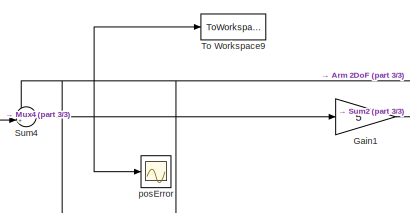
[diagram: root canvas - part 1/3, top center region]
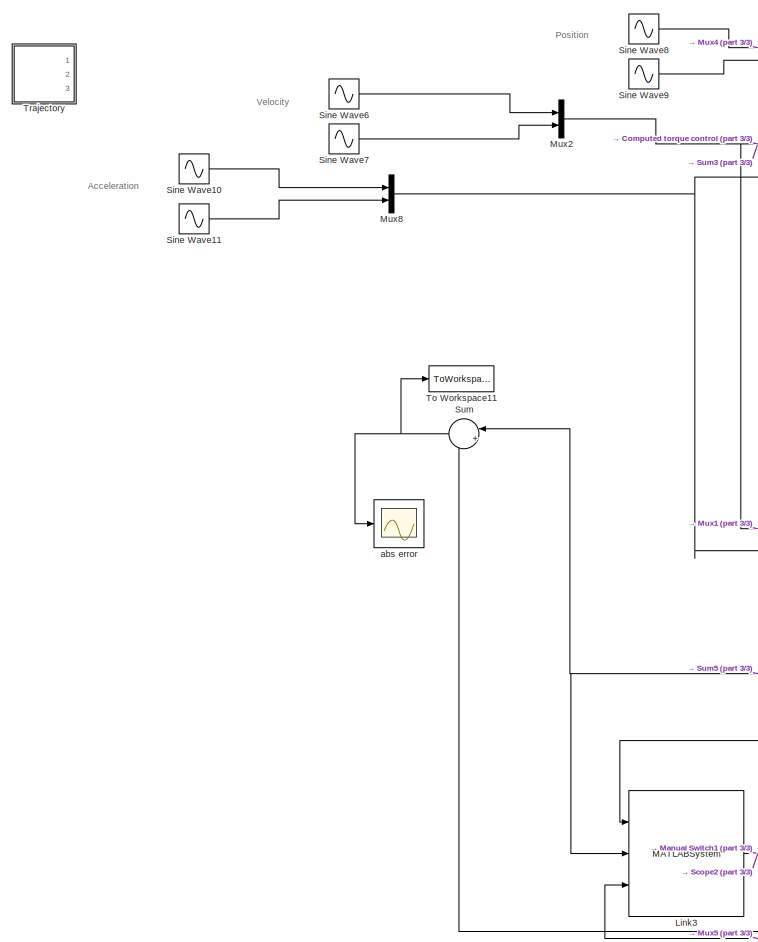
[diagram: root canvas - part 2/3, middle left region]
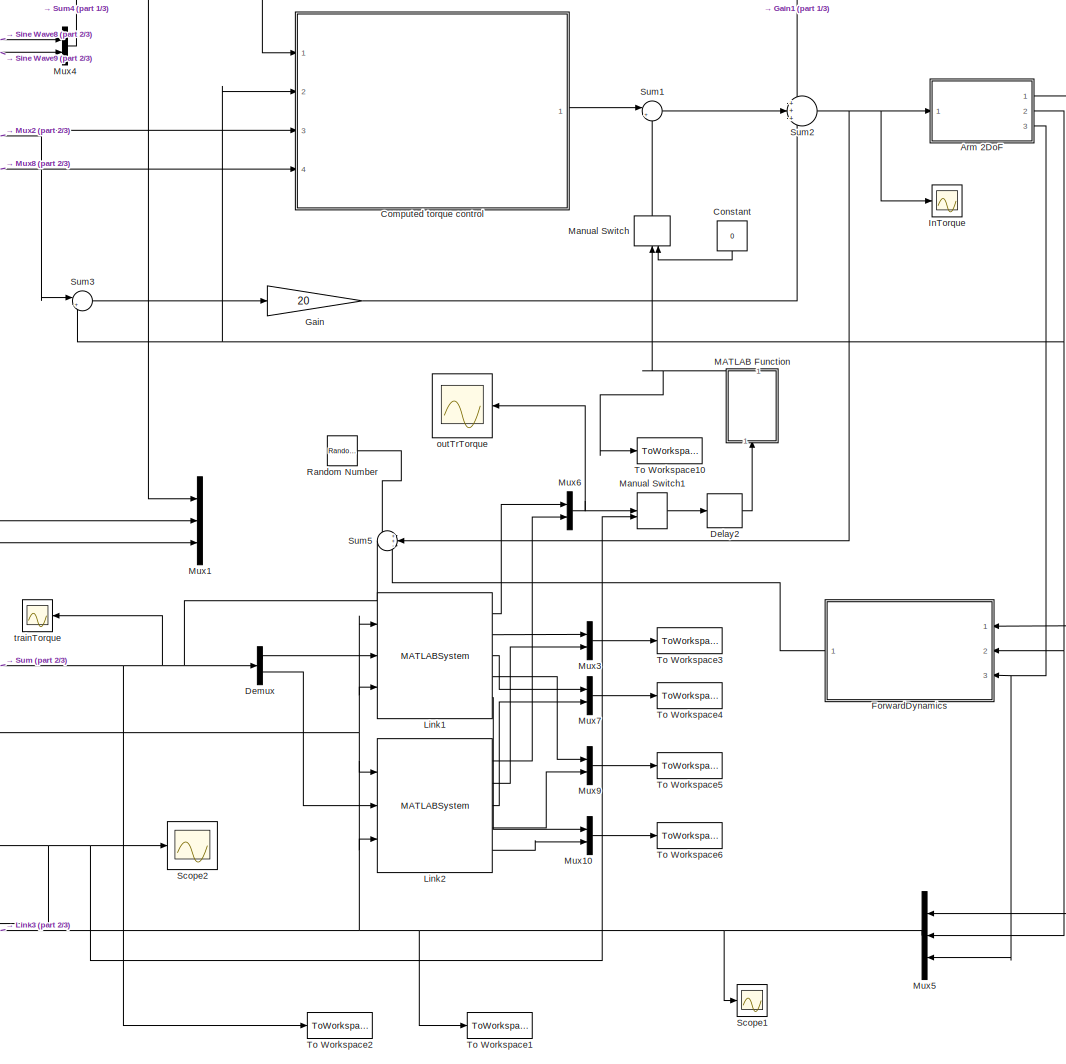
[diagram: root canvas - part 3/3, right side, full height]
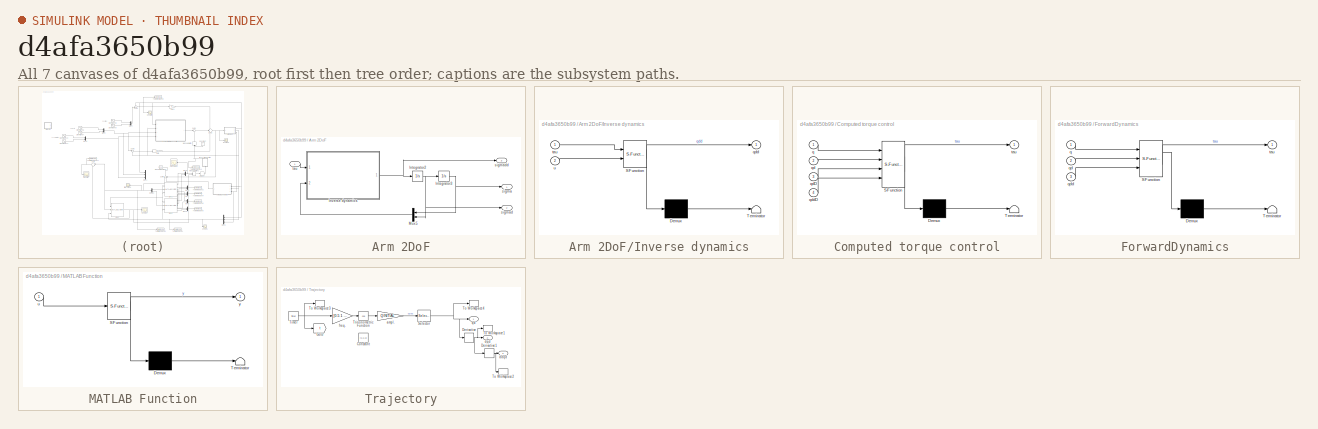
[diagram: thumbnail index - all 7 canvases of the model, root first then tree order]
MODEL slx_d4afa3650b99
KIND model
CONFIG AbsTol = auto
CONFIG EnableMultiTasking = off
CONFIG FixedStep = 1e-2
CONFIG MaxStep = auto
CONFIG MinStep = auto
CONFIG RelTol = 1e-3
CONFIG SampleTimeConstraint = Unconstrained
CONFIG Solver = FixedStepAuto
CONFIG SolverName = FixedStepAuto
CONFIG StartTime = 0
CONFIG StopTime = 60
WORKSPACE source: external: MAT-File  (data not in archive)
BLOCK [SubSystem] Arm 2DoF
  Ports = [1, 3]
  RequestExecContextInheritance = off
BLOCK [Integrator] Arm 2DoF/Integrator2
  InitialCondition = [0;0]
  Ports = [1, 1]
BLOCK [Integrator] Arm 2DoF/Integrator3
  InitialCondition = [0;0]
  Ports = [1, 1]
BLOCK [SubSystem] Arm 2DoF/Inverse dynamics
  ErrorFcn = Stateflow.Translate.translate
  PermitHierarchicalResolution = ExplicitOnly
  Ports = [2, 1]
  RequestExecContextInheritance = off
  SFBlockType = MATLAB Function
  TreatAsAtomicUnit = on
BLOCK [Demux] Arm 2DoF/Inverse dynamics/ Demux 
  Outputs = 1
  Ports = [1, 1]
BLOCK [S-Function] Arm 2DoF/Inverse dynamics/ SFunction 
  EnableBusSupport = on
  FunctionName = sf_sfun
  PortCounts = [2 2]
  Ports = [2, 2]
  SFcnIsStateOwnerBlock = off
  SFunctionDeploymentMode = off
  Tag = Stateflow S-Function simTest 8
BLOCK [Terminator] Arm 2DoF/Inverse dynamics/ Terminator 
BLOCK [Outport] Arm 2DoF/Inverse dynamics/qdd
  IconDisplay = Port number
BLOCK [Inport] Arm 2DoF/Inverse dynamics/tau
  IconDisplay = Port number
BLOCK [Inport] Arm 2DoF/Inverse dynamics/u
  IconDisplay = Port number
  Port = 2
BLOCK [Mux] Arm 2DoF/Mux5
  DisplayOption = bar
  Inputs = 2
  Ports = [2, 1]
BLOCK [Outport] Arm 2DoF/sigma
  IconDisplay = Port number
BLOCK [Outport] Arm 2DoF/sigmad
  IconDisplay = Port number
  Port = 2
BLOCK [Outport] Arm 2DoF/sigmadd
  IconDisplay = Port number
  Port = 3
BLOCK [Inport] Arm 2DoF/tau
  IconDisplay = Port number
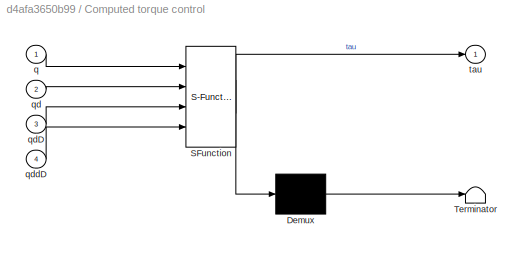
BLOCK [SubSystem] Computed torque control
  ErrorFcn = Stateflow.Translate.translate
  PermitHierarchicalResolution = ExplicitOnly
  Ports = [4, 1]
  RequestExecContextInheritance = off
  SFBlockType = MATLAB Function
  TreatAsAtomicUnit = on
BLOCK [Demux] Computed torque control/ Demux 
  Outputs = 1
  Ports = [1, 1]
BLOCK [S-Function] Computed torque control/ SFunction 
  EnableBusSupport = on
  FunctionName = sf_sfun
  PortCounts = [4 2]
  Ports = [4, 2]
  SFcnIsStateOwnerBlock = off
  SFunctionDeploymentMode = off
  Tag = Stateflow S-Function simTest 2
BLOCK [Terminator] Computed torque control/ Terminator 
BLOCK [Inport] Computed torque control/q
  IconDisplay = Port number
BLOCK [Inport] Computed torque control/qd
  IconDisplay = Port number
  Port = 2
BLOCK [Inport] Computed torque control/qdD
  IconDisplay = Port number
  Port = 3
BLOCK [Inport] Computed torque control/qddD
  IconDisplay = Port number
  Port = 4
BLOCK [Outport] Computed torque control/tau
  IconDisplay = Port number
BLOCK [Constant] Constant
  Value = 0
BLOCK [Delay] Delay2
  DelayLength = 1
  InputPortMap = u0
  Ports = [1, 1]
BLOCK [Demux] Demux
  DisplayOption = bar
  Outputs = 2
  Ports = [1, 2]
BLOCK [SubSystem] ForwardDynamics
  ErrorFcn = Stateflow.Translate.translate
  PermitHierarchicalResolution = ExplicitOnly
  Ports = [3, 1]
  RequestExecContextInheritance = off
  SFBlockType = MATLAB Function
  TreatAsAtomicUnit = on
BLOCK [Demux] ForwardDynamics/ Demux 
  Outputs = 1
  Ports = [1, 1]
BLOCK [S-Function] ForwardDynamics/ SFunction 
  EnableBusSupport = on
  FunctionName = sf_sfun
  PortCounts = [3 2]
  Ports = [3, 2]
  SFcnIsStateOwnerBlock = off
  SFunctionDeploymentMode = off
  Tag = Stateflow S-Function simTest 1
BLOCK [Terminator] ForwardDynamics/ Terminator 
BLOCK [Inport] ForwardDynamics/q
  IconDisplay = Port number
BLOCK [Inport] ForwardDynamics/qd
  IconDisplay = Port number
  Port = 2
BLOCK [Inport] ForwardDynamics/qdd
  IconDisplay = Port number
  Port = 3
BLOCK [Outport] ForwardDynamics/tau
  IconDisplay = Port number
BLOCK [Gain] Gain
  Gain = 20
  OutDataTypeStr = Inherit: Inherit via internal rule
  ParamDataTypeStr = Inherit: Inherit via internal rule
  SaturateOnIntegerOverflow = off
BLOCK [Gain] Gain1
  Gain = 5
  OutDataTypeStr = Inherit: Inherit via internal rule
  ParamDataTypeStr = Inherit: Inherit via internal rule
  SaturateOnIntegerOverflow = off
BLOCK [Scope] InTorque
  Commented = on
  Floating = off
  NumInputPorts = 1
  Ports = [1]
  ScopeSpecificationString = Simulink.scopes.TimeScopeBlockCfg('CurrentConfiguration', extmgr.ConfigurationSet(extmgr.Configuration('Core','General UI',true),extmgr.Configuration('Core','Source UI',true),extmgr.Configuration('Sources','WiredSimulink',true,'DataLoggingVariableName','ScopeData1'),extmgr.Configuration('Visuals','Time Domain',true,'SerializedDisplays',{struct('MinYLimReal','-69.19096','MaxYLimReal','205.4846','YL...<+1428ch>
BLOCK [MATLABSystem] Link1
  Commented = on
  MaskDisplay = disp('DLGP1');\nport_label('input',1,'xTrain');\nport_label('input',2,'yTrain');\nport_label('input',3,'xTest');\nport_label('output',1,'yTest');\nport_label('output',2,'mN');\nport_label('output',3,'tU');\nport_label('output',4,'tP');\nport_label('output',5,'pts');
  MaskType = DLGP_IEopMean
  N = 10000
  Ports = [3, 5]
  System = DLGP_IEopMean
  ard = off
  divMethod = 3
  meanFunction = @(x) 0
  pts = 50
  timeRate = 0.005
  wo = 300
  xSize = 6
BLOCK [MATLABSystem] Link2
  Commented = on
  MaskDisplay = disp('DLGP1');\nport_label('input',1,'xTrain');\nport_label('input',2,'yTrain');\nport_label('input',3,'xTest');\nport_label('output',1,'yTest');\nport_label('output',2,'mN');\nport_label('output',3,'tU');\nport_label('output',4,'tP');\nport_label('output',5,'pts');
  MaskType = DLGP_IEopMean
  N = 10000
  Ports = [3, 5]
  System = DLGP_IEopMean
  ard = off
  divMethod = 3
  meanFunction = @(x) x( 1, : ) + x( 2, : ) + x( 3, : ) + x( 4, : ) + x( 5, : ) + x( 6, : )
  pts = 50
  timeRate = 0.005
  wo = 300
  xSize = 6
BLOCK [MATLABSystem] Link3
  MaskDisplay = disp('DLGP1');\nport_label('input',1,'xTrain');\nport_label('input',2,'yTrain');\nport_label('input',3,'xTest');\nport_label('output',1,'yTest');
  MaskType = DLGP_IE_Mop
  N = 10000
  Ports = [3, 1]
  System = DLGP_IE_Mop
  ard = off
  divMethod = 3
  outs = 2
  pts = 50
  timeRate = 0.005
  wo = 100
  xSize = 6
BLOCK [SubSystem] MATLAB Function
  ErrorFcn = Stateflow.Translate.translate
  PermitHierarchicalResolution = ExplicitOnly
  Ports = [1, 1]
  RequestExecContextInheritance = off
  SFBlockType = MATLAB Function
  TreatAsAtomicUnit = on
BLOCK [Demux] MATLAB Function/ Demux 
  Outputs = 1
  Ports = [1, 1]
BLOCK [S-Function] MATLAB Function/ SFunction 
  EnableBusSupport = on
  FunctionName = sf_sfun
  PortCounts = [1 2]
  Ports = [1, 2]
  SFcnIsStateOwnerBlock = off
  SFunctionDeploymentMode = off
  Tag = Stateflow S-Function simTest 3
BLOCK [Terminator] MATLAB Function/ Terminator 
BLOCK [Inport] MATLAB Function/u
  IconDisplay = Port number
BLOCK [Outport] MATLAB Function/y
  IconDisplay = Port number
BLOCK [ManualSwitch] Manual Switch
BLOCK [ManualSwitch] Manual Switch1
  CurrentSetting = 0
BLOCK [Mux] Mux1
  DisplayOption = bar
  Inputs = 3
  Ports = [3, 1]
BLOCK [Mux] Mux10
  DisplayOption = bar
  Inputs = 2
  Ports = [2, 1]
BLOCK [Mux] Mux2
  DisplayOption = bar
  Inputs = 2
  Ports = [2, 1]
BLOCK [Mux] Mux3
  DisplayOption = bar
  Inputs = 2
  Ports = [2, 1]
BLOCK [Mux] Mux4
  DisplayOption = bar
  Inputs = 2
  Ports = [2, 1]
BLOCK [Mux] Mux5
  DisplayOption = bar
  Inputs = 3
  Ports = [3, 1]
BLOCK [Mux] Mux6
  DisplayOption = bar
  Inputs = 2
  Ports = [2, 1]
BLOCK [Mux] Mux7
  DisplayOption = bar
  Inputs = 2
  Ports = [2, 1]
BLOCK [Mux] Mux8
  DisplayOption = bar
  Inputs = 2
  Ports = [2, 1]
BLOCK [Mux] Mux9
  DisplayOption = bar
  Inputs = 2
  Ports = [2, 1]
BLOCK [RandomNumber] Random Number
  SampleTime = 0.005
BLOCK [Scope] Scope1
  Floating = off
  NumInputPorts = 1
  Ports = [1]
  ScopeSpecificationString = Simulink.scopes.TimeScopeBlockCfg('CurrentConfiguration', extmgr.ConfigurationSet(extmgr.Configuration('Core','General UI',true),extmgr.Configuration('Core','Source UI',true),extmgr.Configuration('Sources','WiredSimulink',true,'DataLoggingVariableName','ScopeData1'),extmgr.Configuration('Visuals','Time Domain',true,'SerializedDisplays',{struct('MinYLimReal','-14.63306','MaxYLimReal','15.62903','YL...<+1529ch>
BLOCK [Scope] Scope2
  Floating = off
  NumInputPorts = 1
  Ports = [1]
  ScopeSpecificationString = Simulink.scopes.TimeScopeBlockCfg('CurrentConfiguration', extmgr.ConfigurationSet(extmgr.Configuration('Core','General UI',true),extmgr.Configuration('Core','Source UI',true),extmgr.Configuration('Sources','WiredSimulink',true,'DataLoggingVariableName','ScopeData1'),extmgr.Configuration('Visuals','Time Domain',true,'SerializedDisplays',{struct('MinYLimReal','-3.34157','MaxYLimReal','49.27926','YLa...<+1503ch>
BLOCK [Sin] Sine Wave10
  Amplitude = -pi/6
  Phase = pi/2
  Ports = [0, 1]
  SampleTime = 0
BLOCK [Sin] Sine Wave11
  Amplitude = -pi/24
  Frequency = 0.5
  Phase = pi/2
  Ports = [0, 1]
  SampleTime = 0
BLOCK [Sin] Sine Wave6
  Amplitude = -pi/6
  Ports = [0, 1]
  SampleTime = 0
BLOCK [Sin] Sine Wave7
  Amplitude = -pi/12
  Frequency = 0.5
  Ports = [0, 1]
  SampleTime = 0
BLOCK [Sin] Sine Wave8
  Amplitude = pi/6
  Phase = pi/2
  Ports = [0, 1]
  SampleTime = 0
BLOCK [Sin] Sine Wave9
  Amplitude = pi/6
  Frequency = 0.5
  Phase = pi/2
  Ports = [0, 1]
  SampleTime = 0
BLOCK [Sum] Sum
  IconShape = round
  InputSameDT = off
  Inputs = |+-
  OutDataTypeStr = Inherit: Inherit via internal rule
  Ports = [2, 1]
  SaturateOnIntegerOverflow = off
BLOCK [Sum] Sum1
  IconShape = round
  InputSameDT = off
  Inputs = |++
  OutDataTypeStr = Inherit: Inherit via internal rule
  Ports = [2, 1]
  SaturateOnIntegerOverflow = off
BLOCK [Sum] Sum2
  IconShape = round
  InputSameDT = off
  Inputs = +++
  OutDataTypeStr = Inherit: Inherit via internal rule
  Ports = [3, 1]
  SaturateOnIntegerOverflow = off
BLOCK [Sum] Sum3
  IconShape = round
  InputSameDT = off
  Inputs = |+-
  OutDataTypeStr = Inherit: Inherit via internal rule
  Ports = [2, 1]
  SaturateOnIntegerOverflow = off
BLOCK [Sum] Sum4
  IconShape = round
  InputSameDT = off
  Inputs = -+|
  OutDataTypeStr = Inherit: Inherit via internal rule
  Ports = [2, 1]
  SaturateOnIntegerOverflow = off
BLOCK [Sum] Sum5
  IconShape = round
  InputSameDT = off
  Inputs = ++-
  OutDataTypeStr = Inherit: Inherit via internal rule
  Ports = [3, 1]
  SaturateOnIntegerOverflow = off
BLOCK [ToWorkspace] To Workspace1
  FixptAsFi = on
  MaxDataPoints = inf
  Ports = [1]
  SampleTime = -1
  Save2DSignal = 2-D array (concatenate along first dimension)
  VariableName = xTrain
BLOCK [ToWorkspace] To Workspace10
  FixptAsFi = on
  MaxDataPoints = inf
  Ports = [1]
  SampleTime = -1
  Save2DSignal = 2-D array (concatenate along first dimension)
  VariableName = Y_test
BLOCK [ToWorkspace] To Workspace11
  FixptAsFi = on
  MaxDataPoints = inf
  Ports = [1]
  SampleTime = -1
  Save2DSignal = 2-D array (concatenate along first dimension)
  VariableName = absoluteError
BLOCK [ToWorkspace] To Workspace2
  FixptAsFi = on
  MaxDataPoints = inf
  Ports = [1]
  SampleTime = -1
  Save2DSignal = 2-D array (concatenate along first dimension)
  VariableName = yTrain
BLOCK [ToWorkspace] To Workspace3
  FixptAsFi = on
  MaxDataPoints = inf
  Ports = [1]
  SampleTime = -1
  Save2DSignal = 2-D array (concatenate along first dimension)
  VariableName = mNum
BLOCK [ToWorkspace] To Workspace4
  FixptAsFi = on
  MaxDataPoints = inf
  Ports = [1]
  SampleTime = -1
  Save2DSignal = 2-D array (concatenate along first dimension)
  VariableName = tU0
BLOCK [ToWorkspace] To Workspace5
  FixptAsFi = on
  MaxDataPoints = inf
  Ports = [1]
  SampleTime = -1
  Save2DSignal = 2-D array (concatenate along first dimension)
  VariableName = tP0
BLOCK [ToWorkspace] To Workspace6
  FixptAsFi = on
  MaxDataPoints = inf
  Ports = [1]
  SampleTime = -1
  Save2DSignal = 2-D array (concatenate along first dimension)
  VariableName = pts
BLOCK [ToWorkspace] To Workspace9
  FixptAsFi = on
  MaxDataPoints = inf
  Ports = [1]
  SampleTime = -1
  Save2DSignal = 2-D array (concatenate along first dimension)
  VariableName = posError
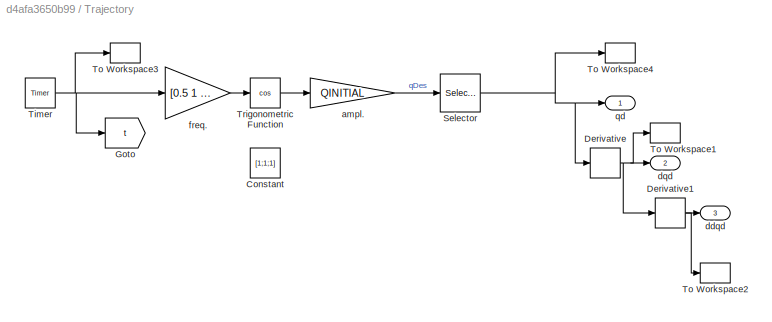
BLOCK [SubSystem] Trajectory
  Commented = on
  Ports = [0, 3]
  RequestExecContextInheritance = off
BLOCK [Constant] Trajectory/Constant
  Value = [1;1;1]
BLOCK [Derivative] Trajectory/Derivative
BLOCK [Derivative] Trajectory/Derivative1
BLOCK [Goto] Trajectory/Goto
  GotoTag = t
  TagVisibility = global
BLOCK [Selector] Trajectory/Selector
  IndexOptions = Index vector (dialog)
  Indices = [1 2]
  InputPortWidth = 3
  OutputSizes = 1
  Ports = [1, 1]
BLOCK [Reference] Trajectory/Timer  REF=libCarbo/Timer
  Ports = [0, 1]
  SourceBlock = libCarbo/Timer
  SourceType = SubSystem
BLOCK [ToWorkspace] Trajectory/To Workspace1
  FixptAsFi = on
  MaxDataPoints = inf
  Ports = [1]
  SampleTime = -1
  Save2DSignal = 3-D array (concatenate along third dimension)
  VariableName = dqd
BLOCK [ToWorkspace] Trajectory/To Workspace2
  FixptAsFi = on
  MaxDataPoints = inf
  Ports = [1]
  SampleTime = -1
  Save2DSignal = 3-D array (concatenate along third dimension)
  VariableName = ddqd
BLOCK [ToWorkspace] Trajectory/To Workspace3
  FixptAsFi = on
  MaxDataPoints = inf
  Ports = [1]
  SampleTime = -1
  Save2DSignal = 3-D array (concatenate along third dimension)
  VariableName = tsim
BLOCK [ToWorkspace] Trajectory/To Workspace4
  FixptAsFi = on
  MaxDataPoints = inf
  Ports = [1]
  SampleTime = -1
  Save2DSignal = 3-D array (concatenate along third dimension)
  VariableName = qd
BLOCK [Trigonometry] Trajectory/Trigonometric Function
  Operator = cos
  Ports = [1, 1]
BLOCK [Gain] Trajectory/ampl.
  Gain = QINITIAL
  OutDataTypeStr = Inherit: Inherit via internal rule
  ParamDataTypeStr = Inherit: Inherit via internal rule
  SaturateOnIntegerOverflow = off
BLOCK [Outport] Trajectory/ddqd
  IconDisplay = Port number
  Port = 3
BLOCK [Outport] Trajectory/dqd
  IconDisplay = Port number
  Port = 2
BLOCK [Gain] Trajectory/freq.
  Gain = [0.5 1 0]
  OutDataTypeStr = Inherit: Inherit via internal rule
  ParamDataTypeStr = Inherit: Inherit via internal rule
  SaturateOnIntegerOverflow = off
BLOCK [Outport] Trajectory/qd
  IconDisplay = Port number
BLOCK [Scope] abs error
  Floating = off
  NumInputPorts = 1
  Ports = [1]
  ScopeSpecificationString = Simulink.scopes.TimeScopeBlockCfg('CurrentConfiguration', extmgr.ConfigurationSet(extmgr.Configuration('Core','General UI',true),extmgr.Configuration('Core','Source UI',true),extmgr.Configuration('Sources','WiredSimulink',true,'DataLoggingVariableName','ScopeData1'),extmgr.Configuration('Visuals','Time Domain',true,'SerializedDisplays',{struct('MinYLimReal','-5.13266','MaxYLimReal','7.33224','YLab...<+1496ch>
BLOCK [Scope] outTrTorque
  Floating = off
  NumInputPorts = 1
  Ports = [1]
  ScopeSpecificationString = Simulink.scopes.TimeScopeBlockCfg('CurrentConfiguration', extmgr.ConfigurationSet(extmgr.Configuration('Core','General UI',true),extmgr.Configuration('Core','Source UI',true),extmgr.Configuration('Sources','WiredSimulink',true,'DataLoggingVariableName','outTrTorque','DataLoggingSaveFormat','Array'),extmgr.Configuration('Visuals','Time Domain',true,'SerializedDisplays',{struct('MinYLimReal','-10.28...<+1583ch>
BLOCK [Scope] posError
  Floating = off
  NumInputPorts = 1
  Ports = [1]
  ScopeSpecificationString = Simulink.scopes.TimeScopeBlockCfg('CurrentConfiguration', extmgr.ConfigurationSet(extmgr.Configuration('Core','General UI',true),extmgr.Configuration('Core','Source UI',true),extmgr.Configuration('Sources','WiredSimulink',true,'DataLoggingVariableName','posError','DataLoggingSaveFormat','Array','DataLoggingDecimation','6'),extmgr.Configuration('Visuals','Time Domain',true,'SerializedDisplays',{str...<+1592ch>
BLOCK [Scope] trainTorque
  Floating = off
  NumInputPorts = 1
  Ports = [1]
  ScopeSpecificationString = Simulink.scopes.TimeScopeBlockCfg('CurrentConfiguration', extmgr.ConfigurationSet(extmgr.Configuration('Core','General UI',true),extmgr.Configuration('Core','Source UI',true),extmgr.Configuration('Sources','WiredSimulink',true,'DataLoggingVariableName','trainTorque','DataLoggingSaveFormat','Array'),extmgr.Configuration('Visuals','Time Domain',true,'SerializedDisplays',{struct('MinYLimReal','-5.688...<+1537ch>
ANNOTATION (root): Acceleration
ANNOTATION (root): Position
ANNOTATION (root): Velocity
NET Arm 2DoF/Integrator2:1 -> Arm 2DoF/Integrator3:1, Arm 2DoF/Mux5:2, Arm 2DoF/sigmad:1
NET Arm 2DoF/Integrator3:1 -> Arm 2DoF/Mux5:1, Arm 2DoF/sigma:1
NET Arm 2DoF/Inverse dynamics:1 -> Arm 2DoF/Integrator2:1, Arm 2DoF/sigmadd:1
LINE Arm 2DoF/Mux5:1 -> Arm 2DoF/Inverse dynamics:2
LINE Arm 2DoF/tau:1 -> Arm 2DoF/Inverse dynamics:1
NET Arm 2DoF:1 -> Computed torque control:1, ForwardDynamics:1, Mux1:1, Mux5:1, Sum4:1
NET Arm 2DoF:2 -> Computed torque control:2, ForwardDynamics:2, Mux5:2, Sum3:2
NET Arm 2DoF:3 -> ForwardDynamics:3, Mux5:3
LINE Computed torque control:1 -> Sum1:1
LINE Constant:1 -> Manual Switch:2
LINE Delay2:1 -> MATLAB Function:1
LINE Demux:1 -> Link1:2
LINE Demux:2 -> Link2:2
LINE ForwardDynamics:1 -> Sum5:3
LINE Gain1:1 -> Sum2:1
LINE Gain:1 -> Sum2:3
LINE Link1:1 -> Mux6:1
LINE Link1:2 -> Mux3:1
LINE Link1:3 -> Mux7:1
LINE Link1:4 -> Mux9:1
LINE Link1:5 -> Mux10:1
LINE Link2:1 -> Mux6:2
LINE Link2:2 -> Mux3:2
LINE Link2:3 -> Mux7:2
LINE Link2:4 -> Mux9:2
LINE Link2:5 -> Mux10:2
NET Link3:1 -> Manual Switch1:2, Scope2:1, Sum:2
NET MATLAB Function:1 -> Manual Switch:1, To Workspace10:1
LINE Manual Switch1:1 -> Delay2:1
LINE Manual Switch:1 -> Sum1:2
LINE Mux10:1 -> To Workspace6:1
NET Mux2:1 -> Computed torque control:3, Mux1:2, Sum3:1
LINE Mux3:1 -> To Workspace3:1
LINE Mux4:1 -> Sum4:2
NET Mux5:1 -> Link1:1, Link1:3, Link2:1, Link2:3, Link3:1, Link3:3, Scope1:1, To Workspace1:1
NET Mux6:1 -> Manual Switch1:1, outTrTorque:1
LINE Mux7:1 -> To Workspace4:1
NET Mux8:1 -> Computed torque control:4, Mux1:3
LINE Mux9:1 -> To Workspace5:1
LINE Random Number:1 -> Sum5:1
LINE Sine Wave10:1 -> Mux8:1
LINE Sine Wave11:1 -> Mux8:2
LINE Sine Wave6:1 -> Mux2:1
LINE Sine Wave7:1 -> Mux2:2
LINE Sine Wave8:1 -> Mux4:1
LINE Sine Wave9:1 -> Mux4:2
LINE Sum1:1 -> Sum2:2
NET Sum2:1 -> Arm 2DoF:1, InTorque:1, Sum5:2
LINE Sum3:1 -> Gain:1
NET Sum4:1 -> Gain1:1, To Workspace9:1, posError:1
NET Sum5:1 -> Demux:1, Link3:2, Sum:1, To Workspace2:1, trainTorque:1
NET Sum:1 -> To Workspace11:1, abs error:1
NET Trajectory/Derivative1:1 -> Trajectory/To Workspace2:1, Trajectory/ddqd:1
NET Trajectory/Derivative:1 -> Trajectory/Derivative1:1, Trajectory/To Workspace1:1, Trajectory/dqd:1
NET Trajectory/Selector:1 -> Trajectory/Derivative:1, Trajectory/To Workspace4:1, Trajectory/qd:1
NET Trajectory/Timer:1 -> Trajectory/Goto:1, Trajectory/To Workspace3:1, Trajectory/freq.:1
LINE Trajectory/Trigonometric Function:1 -> Trajectory/ampl.:1
LINE Trajectory/ampl.:1 -> Trajectory/Selector:1
LINE Trajectory/freq.:1 -> Trajectory/Trigonometric Function:1
note: NET lines group one-source signal fan-out (src -> all destinations, sorted); 1:1 wires keep LINE
CHART ForwardDynamics states=1 transitions=1
  STATE_LABEL 'eML_blk_kernel()'
  STATE_LABEL 'SCRIPT:\nfunction tau = CTcontrol(q,qd,qdd)\n%{\ninverse dynamics of a 2 DoF robotic arm\n\nInputs q: 2x1 vector. desired angular position\n       qd: 2x1 vector. desired angular velocity\n       qdd: 2x1 vector. desired angular acceleration\n\nOutput tau: 2x1 vector. Torques\n%}\nconstant = 1.9;\nIz1 = constant;   %moment of inertia\nIz2 =constant;    \nm1 = constant;    %mass\nm2 = constant;\nl1 = constant;    ...<+610ch>'
CHART Computed torque control states=1 transitions=1
  STATE_LABEL 'eML_blk_kernel()'
  STATE_LABEL 'SCRIPT:\nfunction tau = CTcontrol(q,qd,qdD,qddD)\n%{\ninverse dynamics of a 2 DoF robotic arm\n\nInputs q: 2x1 vector. given angular position\n       qd: 2x1 vector. given angular velocity\n       qdD: 2x1 vector. desired angular velocity \n       qddD: 2x1 vector. desired angular acceleration\n\nOutput tau: 2x1 vector. Torques\n%}\nconstant = 1.9;\nIz1 = constant;   %moment of inertia\nIz2 =constant;    \nm1 = ...<+664ch>'
CHART MATLAB Function states=1 transitions=1
  STATE_LABEL 'eML_blk_kernel()'
  STATE_LABEL 'SCRIPT:\nfunction y = slidingWindow(u)\n\npersistent uold\nWS = 30; \nNu = 2; \nif isempty(uold)\n    uold = zeros(Nu,WS);\nend\nuold(:,2:end) = uold(:,1:end-1);\nuold(:,1) = u;\ny = sum(uold,2)/WS;\n'
CHART Arm 2DoF/Inverse dynamics states=1 transitions=1
  STATE_LABEL 'eML_blk_kernel()'
  STATE_LABEL "SCRIPT:\nfunction qdd = fcn(tau,u)\n%{\ninverse dynamics of a 2 DoF robotic arm\nInputs tau: 2x1 vector. Torques\n       u: 4x1 vector [sigma1, sigma2, sigma1d, sigma2d]' position and speed\nOutput qdd: 2x1 vector with accelerations \n%}\n\nIz1 = 2;   %moment of inertia\nIz2 =2;    \nm1 = 2;    %mass\nm2 = 2;\nl1 = 2;    %length\nl2 = 2;\nr1 = 2;   %length to the center of mass\nr2 = 2;\ng = 9.81;  %gravity\n\na = I...<+470ch>"
